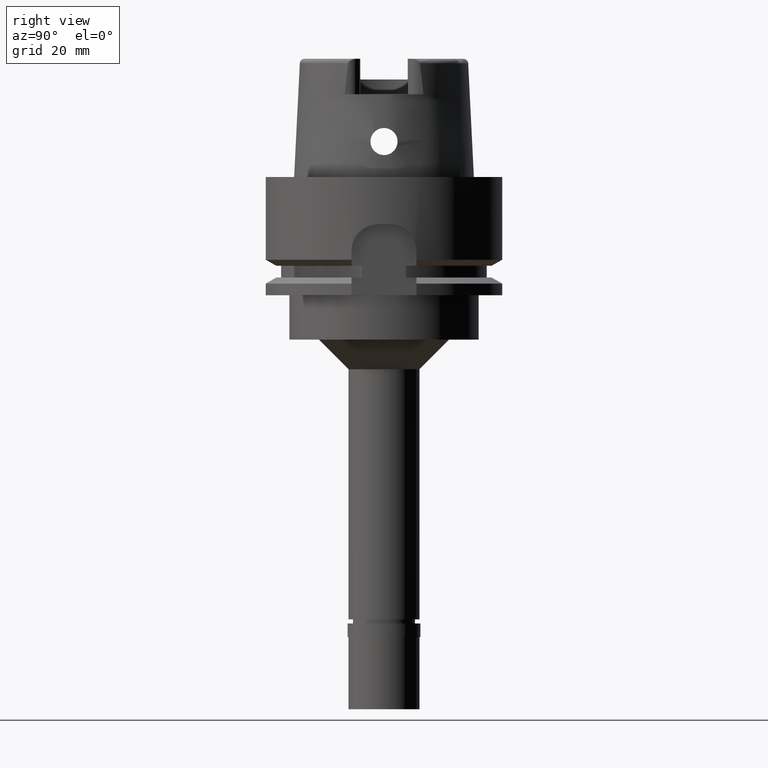
[diagram: clean part render]
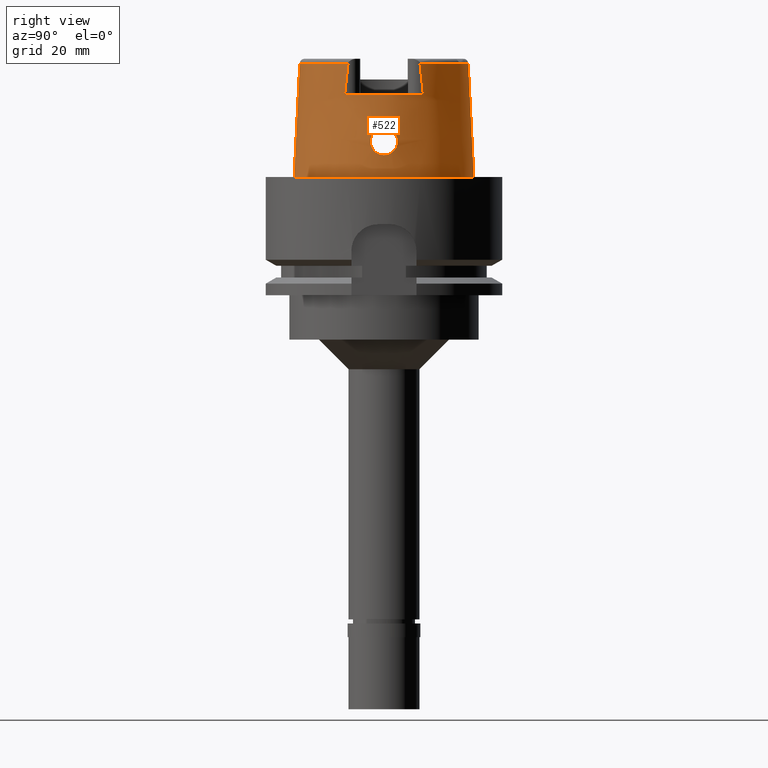
[diagram: same view with one face highlighted and labeled with its STEP entity id]
A machine part, right view. The second image highlights one B-rep face of the part: STEP entity #522.
In plain terms, the highlighted conical surface has half-angle 2.862 deg.
Its self-contained STEP definition (entity closure, byte-faithful):
#49 = EDGE_LOOP ( 'NONE', ( #3539, #1758, #2909, #3270, #3916, #82, #4448, #4754 ) ) ;
#67 = AXIS2_PLACEMENT_3D ( 'NONE', #4349, #1844, #2269 ) ;
#81 = CARTESIAN_POINT ( 'NONE',  ( 14.99031966774297331, 0.7459048849143846693, 3.823714677298882592 ) ) ;
#82 = ORIENTED_EDGE ( 'NONE', *, *, #427, .T. ) ;
#120 = CARTESIAN_POINT ( 'NONE',  ( 12.88000000001000167, 6.659963896840999986, 14.00000000000000000 ) ) ;
#131 = CARTESIAN_POINT ( 'NONE',  ( 14.90627182293922282, 1.538495934737809545, 4.290177245189100930 ) ) ;
#161 = CARTESIAN_POINT ( 'NONE',  ( 14.73194475933520309, -1.581393375610022467, 7.670274872890817441 ) ) ;
#162 = CARTESIAN_POINT ( 'NONE',  ( 14.75636128793671631, 1.136645188751945534, 8.000932732768214706 ) ) ;
#189 = CARTESIAN_POINT ( 'NONE',  ( 14.72153749465031147, -1.748226318510276656, 7.504129366570800208 ) ) ;
#190 = CARTESIAN_POINT ( 'NONE',  ( 14.79662730693979711, 2.107954445213601424, 5.079727333151640600 ) ) ;
#215 = CARTESIAN_POINT ( 'NONE',  ( 14.72949362766434689, -1.621123649780934262, 7.631585187204686704 ) ) ;
#216 = CARTESIAN_POINT ( 'NONE',  ( 14.82516123952829545, 1.987898055920620299, 4.840680728833150148 ) ) ;
#240 = B_SPLINE_CURVE_WITH_KNOTS ( 'NONE', 3,
 ( #3498, #4751, #2334, #5259 ),
 .UNSPECIFIED., .F., .F.,
 ( 4, 4 ),
 ( 0.0000000000000000000, 1.000000000000000000 ),
 .UNSPECIFIED. ) ;
#242 = CARTESIAN_POINT ( 'NONE',  ( 14.77220118755716882, -2.195301879304218051, 5.312847825857951456 ) ) ;
#243 = CARTESIAN_POINT ( 'NONE',  ( 14.72038873287895555, 1.773863286989557420, 7.464610640974472133 ) ) ;
#265 = CARTESIAN_POINT ( 'NONE',  ( 14.76763763204890445, -0.8773543148358186050, 8.126091386768194980 ) ) ;
#266 = CARTESIAN_POINT ( 'NONE',  ( 14.75286377042386654, 1.207578031709185318, 7.959491211283949319 ) ) ;
#308 = CONICAL_SURFACE ( 'NONE', #1331, 14.71899189528999941, 0.04996004983832824653 ) ;
#366 = EDGE_CURVE ( 'NONE', #1261, #3044, #1496, .T. ) ;
#393 = CARTESIAN_POINT ( 'NONE',  ( 14.85789831754006229, -1.827827946657746949, 4.601869308658078417 ) ) ;
#408 = VERTEX_POINT ( 'NONE', #4471 ) ;
#427 = EDGE_CURVE ( 'NONE', #5111, #1979, #904, .T. ) ;
#506 = CARTESIAN_POINT ( 'NONE',  ( 14.98243551379921357, 0.8543323515079437325, 3.864535165651797666 ) ) ;
#522 = ADVANCED_FACE ( 'NONE', ( #1097, #1555 ), #308, .T. ) ;
#558 = CARTESIAN_POINT ( 'NONE',  ( 14.76786071733875794, -0.8715808162125661118, 8.128467170309809475 ) ) ;
#571 = CARTESIAN_POINT ( 'NONE',  ( 15.01500049747999910, 0.0000000000000000000, 3.700000000000000178 ) ) ;
#584 = CARTESIAN_POINT ( 'NONE',  ( 14.74236918891833881, -1.402786313778670690, 7.824249885781482838 ) ) ;
#586 = CARTESIAN_POINT ( 'NONE',  ( 14.70696992323906649, 2.017200220830859703, 7.115079012711747808 ) ) ;
#617 = CARTESIAN_POINT ( 'NONE',  ( 14.75001149344660334, -1.261050655886654548, 7.923504428664499777 ) ) ;
#618 = CARTESIAN_POINT ( 'NONE',  ( 14.70427221823438657, 2.242703931572390008, 6.515680730310596580 ) ) ;
#640 = CARTESIAN_POINT ( 'NONE',  ( 14.73757174422895844, -2.287928503857380225, 5.720955193819562190 ) ) ;
#641 = CARTESIAN_POINT ( 'NONE',  ( 14.89899165425383920, 1.586726493423344486, 4.334940695888434448 ) ) ;
#657 = CIRCLE ( 'NONE', #1864, 15.20000663301000010 ) ;
#668 = CARTESIAN_POINT ( 'NONE',  ( 14.75798564006055003, -1.101463372341952240, 8.019455738740701278 ) ) ;
#669 = CARTESIAN_POINT ( 'NONE',  ( 14.87689953149387279, 1.723568334513447375, 4.475193210527258714 ) ) ;
#698 = CARTESIAN_POINT ( 'NONE',  ( 14.95830063219481154, -1.124479145752672160, 3.992383279016750386 ) ) ;
#775 = CARTESIAN_POINT ( 'NONE',  ( 15.01500049747999910, -0.2871325970946338457, 3.699999999999998401 ) ) ;
#798 = DIRECTION ( 'NONE',  ( 0.0000000000000000000, 1.000000000000000000, 0.0000000000000000000 ) ) ;
#904 = CIRCLE ( 'NONE', #1773, 14.23797715755999782 ) ;
#943 = CARTESIAN_POINT ( 'NONE',  ( 12.88000000001000167, -6.659963896840999986, 14.00000000000000000 ) ) ;
#966 = DIRECTION ( 'NONE',  ( 0.8882768779220027167, 0.4593083802296007434, 0.0000000000000000000 ) ) ;
#986 = CARTESIAN_POINT ( 'NONE',  ( 14.70919325498873853, -1.970696971314909618, 7.188285030719960389 ) ) ;
#987 = CARTESIAN_POINT ( 'NONE',  ( 14.77588791688129888, 2.186442120405778233, 5.267482020026404754 ) ) ;
#1006 = CARTESIAN_POINT ( 'NONE',  ( 0.0000000000000000000, 14.23797715755999782, 19.23995141520000018 ) ) ;
#1014 = CARTESIAN_POINT ( 'NONE',  ( 14.78499286951999991, -6.894269632583999541E-14, 8.300000000000000711 ) ) ;
#1016 = CARTESIAN_POINT ( 'NONE',  ( 14.76156421944066466, 2.230824447536166932, 5.420041795631996173 ) ) ;
#1043 = CARTESIAN_POINT ( 'NONE',  ( 14.71466549942258517, -2.295559139314290231, 6.147467041128566123 ) ) ;
#1044 = CARTESIAN_POINT ( 'NONE',  ( 14.72899572460062068, 1.629097317225929764, 7.623589217242969340 ) ) ;
#1069 = CARTESIAN_POINT ( 'NONE',  ( 14.71564338778878600, -1.847806870517102462, 7.377781273352688629 ) ) ;
#1070 = CARTESIAN_POINT ( 'NONE',  ( 14.72875568117244427, 1.633091607890501784, 7.619572078509174062 ) ) ;
#1097 = FACE_OUTER_BOUND ( 'NONE', #49, .T. ) ;
#1098 = CARTESIAN_POINT ( 'NONE',  ( 14.85071887117963740, 1.866340590171695846, 4.653803108942252464 ) ) ;
#1124 = CARTESIAN_POINT ( 'NONE',  ( 14.91234256874128228, -1.506179668287541240, 4.253282921714210296 ) ) ;
#1125 = CARTESIAN_POINT ( 'NONE',  ( 14.76724013281583048, 0.8875292537788221914, 8.121866557286843147 ) ) ;
#1146 = CARTESIAN_POINT ( 'NONE',  ( 14.97993120625483066, -0.8860914320854921256, 3.877516195770338570 ) ) ;
#1171 = CARTESIAN_POINT ( 'NONE',  ( 14.79810643752574784, -2.102675460223371484, 5.065757656975159229 ) ) ;
#1198 = CARTESIAN_POINT ( 'NONE',  ( 14.81768529006569501, -2.021422245102785009, 4.902150308444729987 ) ) ;
#1261 = VERTEX_POINT ( 'NONE', #5035 ) ;
#1288 = CARTESIAN_POINT ( 'NONE',  ( 0.0000000000000000000, 0.0000000000000000000, 14.00000000000000000 ) ) ;
#1297 = CARTESIAN_POINT ( 'NONE',  ( 12.87997705758999878, 6.068458167862999630, 19.23995141520000018 ) ) ;
#1309 = CARTESIAN_POINT ( 'NONE',  ( 14.98583023365998557, 0.8092568642836694970, 3.846919111858743801 ) ) ;
#1331 = AXIS2_PLACEMENT_3D ( 'NONE', #2013, #3662, #5285 ) ;
#1335 = CARTESIAN_POINT ( 'NONE',  ( 14.93085779972519944, 1.360633155515191151, 4.143801152077521088 ) ) ;
#1371 = CARTESIAN_POINT ( 'NONE',  ( 14.73069371207435374, -1.601746922599884604, 7.650604681000335638 ) ) ;
#1401 = CARTESIAN_POINT ( 'NONE',  ( 14.76441077863198181, 0.9572565202499995207, 8.091400617971791220 ) ) ;
#1424 = ORIENTED_EDGE ( 'NONE', *, *, #1572, .F. ) ;
#1428 = CARTESIAN_POINT ( 'NONE',  ( 14.70353423477952504, -2.113390049053946118, 6.907552478473814261 ) ) ;
#1429 = CARTESIAN_POINT ( 'NONE',  ( 14.89505763544525685, 1.611988072085211110, 4.359395268229523168 ) ) ;
#1444 = DIRECTION ( 'NONE',  ( 0.0000000000000000000, 0.04993926899656212642, -0.9987522562738413434 ) ) ;
#1454 = CARTESIAN_POINT ( 'NONE',  ( 14.74945666596643257, -1.271567424653163192, 7.916560800381597041 ) ) ;
#1455 = CARTESIAN_POINT ( 'NONE',  ( 14.70295564197937566, 2.139721751908810088, 6.843613750114655225 ) ) ;
#1476 = CARTESIAN_POINT ( 'NONE',  ( 14.78455329603679402, -2.153012719558052179, 5.190526148136822115 ) ) ;
#1477 = CARTESIAN_POINT ( 'NONE',  ( 14.71340611712510871, 1.895769364155533321, 7.304485723113478990 ) ) ;
#1496 = B_SPLINE_CURVE_WITH_KNOTS ( 'NONE', 3,
 ( #1014, #2629, #2603, #5142, #4707, #3880, #4367, #2703, #4317, #4261, #558, #265, #1909, #3559, #668, #2260, #1808, #3904, #3532, #617, #1454, #3481, #584, #3851, #5170, #161, #1371, #2235, #215, #189, #1069, #986, #4289, #1836, #3454, #5112, #1428, #3098, #3068, #1858, #2311, #3009, #3507, #5088, #1043, #2677, #3037, #4656, #640, #2286, #3931, #242, #1885, #1476, #3122, #4755, #3224, #1171, #2732, #1198, #4833, #2836, #1499, #4445, #2440, #5219, #4089, #393, #1931, #4887, #1527, #2391, #3201, #2037, #1124, #2759, #3253, #698, #4419, #5264, #3986, #2364, #3177, #1146, #4397, #775, #2779 ),
 .UNSPECIFIED., .F., .F.,
 ( 4, 2, 2, 1, 1, 1, 2, 2, 2, 2, 1, 2, 2, 2, 1, 1, 2, 2, 2, 2, 1, 1, 2, 2, 2, 2, 2, 2, 2, 2, 1, 1, 2, 2, 2, 2, 1, 2, 2, 2, 1, 1, 2, 2, 2, 2, 1, 1, 2, 2, 4 ),
 ( 0.0000000000000000000, 0.06250000000000610623, 0.09375000000000907607, 0.1093750000000104500, 0.1171875000000111439, 0.1210937500000115741, 0.1230468750000117961, 0.1250000000000120182, 0.1562500000000134337, 0.1718750000000139611, 0.1796875000000140998, 0.1835937500000141831, 0.1875000000000142664, 0.2187500000000154876, 0.2343750000000162370, 0.2421875000000166256, 0.2460937500000169587, 0.2500000000000172640, 0.3125000000000223155, 0.3437500000000249800, 0.3593750000000263123, 0.3671875000000269784, 0.3710937500000271450, 0.3750000000000273115, 0.4375000000000305866, 0.4687500000000322520, 0.4843750000000330846, 0.5000000000000339728, 0.5625000000000376366, 0.5937500000000394129, 0.6093750000000405231, 0.6171875000000409672, 0.6210937500000410783, 0.6250000000000410783, 0.6562500000000394129, 0.6718750000000386358, 0.6796875000000381917, 0.6835937500000380806, 0.6875000000000378586, 0.7187500000000355271, 0.7343750000000344169, 0.7421875000000338618, 0.7460937500000335287, 0.7500000000000330846, 0.8125000000000247580, 0.8437500000000205391, 0.8593750000000185407, 0.8671875000000175415, 0.8710937500000170974, 0.8750000000000165423, 1.000000000000000000 ),
 .UNSPECIFIED. ) ;
#1499 = CARTESIAN_POINT ( 'NONE',  ( 14.83223030098851858, -1.955433158244768377, 4.788777112413261428 ) ) ;
#1500 = CARTESIAN_POINT ( 'NONE',  ( 14.70278272850940304, 2.150285951056535083, 6.816652711922995600 ) ) ;
#1527 = CARTESIAN_POINT ( 'NONE',  ( 14.88495109027888041, -1.673917303365443976, 4.422461724030449126 ) ) ;
#1528 = CARTESIAN_POINT ( 'NONE',  ( 14.76714119523315993, 0.8900458611329298275, 8.120809736010480506 ) ) ;
#1555 = FACE_BOUND ( 'NONE', #4835, .T. ) ;
#1557 = CARTESIAN_POINT ( 'NONE',  ( 14.76685433761362276, 0.8973178279265808799, 8.117743206095068942 ) ) ;
#1572 = EDGE_CURVE ( 'NONE', #3044, #1261, #2649, .T. ) ;
#1632 = AXIS2_PLACEMENT_3D ( 'NONE', #1288, #3046, #966 ) ;
#1672 = VERTEX_POINT ( 'NONE', #3715 ) ;
#1721 = CARTESIAN_POINT ( 'NONE',  ( 15.00367739279779045, 0.5085428966952850738, 3.755686476448892197 ) ) ;
#1745 = CARTESIAN_POINT ( 'NONE',  ( 14.98158092310262646, 0.8653351177384595028, 3.868978640033970517 ) ) ;
#1758 = ORIENTED_EDGE ( 'NONE', *, *, #3176, .T. ) ;
#1773 = AXIS2_PLACEMENT_3D ( 'NONE', #4037, #4011, #798 ) ;
#1808 = CARTESIAN_POINT ( 'NONE',  ( 14.75372188613951430, -1.188826335539440615, 7.969038397971702103 ) ) ;
#1809 = CARTESIAN_POINT ( 'NONE',  ( 14.76098009121996135, 1.036446930946429257, 8.053582547860150598 ) ) ;
#1836 = CARTESIAN_POINT ( 'NONE',  ( 14.70541216265018569, -2.056176607278471735, 7.031204617240676136 ) ) ;
#1837 = CARTESIAN_POINT ( 'NONE',  ( 14.80062957414195601, 2.092187569533761948, 5.044424310516228971 ) ) ;
#1844 = DIRECTION ( 'NONE',  ( 0.0000000000000000000, 0.0000000000000000000, -1.000000000000000000 ) ) ;
#1858 = CARTESIAN_POINT ( 'NONE',  ( 14.70192353252406292, -2.185013873810221607, 6.734496342493828003 ) ) ;
#1859 = CARTESIAN_POINT ( 'NONE',  ( 14.70330530486530662, 2.224536832738603032, 6.589284392127430223 ) ) ;
#1864 = AXIS2_PLACEMENT_3D ( 'NONE', #1930, #3582, #2389 ) ;
#1885 = CARTESIAN_POINT ( 'NONE',  ( 14.77772055641925242, -2.177132526980690486, 5.256435195125702897 ) ) ;
#1886 = CARTESIAN_POINT ( 'NONE',  ( 14.74146914216645676, 1.418215624199719249, 7.810927990181367520 ) ) ;
#1890 = EDGE_CURVE ( 'NONE', #5277, #3396, #657, .T. ) ;
#1909 = CARTESIAN_POINT ( 'NONE',  ( 14.76525806504742100, -0.9385350473888353084, 8.100723137269767449 ) ) ;
#1911 = CARTESIAN_POINT ( 'NONE',  ( 14.80666344919068145, 2.067942716196244035, 4.991931575862035508 ) ) ;
#1930 = CARTESIAN_POINT ( 'NONE',  ( 0.0000000000000000000, 0.0000000000000000000, 7.958078640512999903E-13 ) ) ;
#1931 = CARTESIAN_POINT ( 'NONE',  ( 14.87086338583825373, -1.755950210585481397, 4.514042407701809978 ) ) ;
#1966 = CIRCLE ( 'NONE', #67, 14.23797715756000315 ) ;
#1979 = VERTEX_POINT ( 'NONE', #1297 ) ;
#2013 = CARTESIAN_POINT ( 'NONE',  ( 0.0000000000000000000, 0.0000000000000000000, 9.619975707601000181 ) ) ;
#2037 = CARTESIAN_POINT ( 'NONE',  ( 14.89132152491166927, -1.635323577257784544, 4.382646478392808298 ) ) ;
#2093 = CARTESIAN_POINT ( 'NONE',  ( 15.01500049748000798, 0.1428640230031846814, 3.700000000000000178 ) ) ;
#2098 = B_SPLINE_CURVE_WITH_KNOTS ( 'NONE', 3,
 ( #2129, #3758, #5008, #943 ),
 .UNSPECIFIED., .F., .F.,
 ( 4, 4 ),
 ( 0.0000000000000000000, 1.000000000000000000 ),
 .UNSPECIFIED. ) ;
#2129 = CARTESIAN_POINT ( 'NONE',  ( 12.88000213910999925, -6.068393260412999979, 19.24000420731999839 ) ) ;
#2136 = VERTEX_POINT ( 'NONE', #120 ) ;
#2181 = EDGE_CURVE ( 'NONE', #5111, #3396, #3495, .T. ) ;
#2207 = CARTESIAN_POINT ( 'NONE',  ( 14.70255776574056661, 2.173679922700427536, 6.753461038013438333 ) ) ;
#2235 = CARTESIAN_POINT ( 'NONE',  ( 14.72985967221857884, -1.615234754695002772, 7.637408227725688725 ) ) ;
#2236 = CARTESIAN_POINT ( 'NONE',  ( 14.89650916482271903, 1.602739223195738916, 4.350348390244184849 ) ) ;
#2260 = CARTESIAN_POINT ( 'NONE',  ( 14.75634289263489229, -1.135895648922786716, 8.000355505852548177 ) ) ;
#2261 = CARTESIAN_POINT ( 'NONE',  ( 14.70308791781597435, 2.132559282125863653, 6.861559193087184205 ) ) ;
#2269 = DIRECTION ( 'NONE',  ( 0.9046233376276806570, -0.4262119390858908896, 0.0000000000000000000 ) ) ;
#2286 = CARTESIAN_POINT ( 'NONE',  ( 14.75515235173337736, -2.246232496608297158, 5.499939721797770353 ) ) ;
#2287 = CARTESIAN_POINT ( 'NONE',  ( 14.73841559879714502, 2.283619942142415482, 5.716588133167483043 ) ) ;
#2311 = CARTESIAN_POINT ( 'NONE',  ( 14.70278115732399371, -2.228559900266604110, 6.588157165075712030 ) ) ;
#2313 = CARTESIAN_POINT ( 'NONE',  ( 14.74853410702334777, 1.288930875136958365, 7.904909080908227637 ) ) ;
#2325 = CARTESIAN_POINT ( 'NONE',  ( 0.0000000000000000000, -14.23797715755999782, 19.23995141520000018 ) ) ;
#2334 = CARTESIAN_POINT ( 'NONE',  ( 12.88000000000000078, 6.263607466965889436, 17.57638042516923349 ) ) ;
#2364 = CARTESIAN_POINT ( 'NONE',  ( 14.97820246225900220, -0.9073876234263037466, 3.886539364112054251 ) ) ;
#2389 = DIRECTION ( 'NONE',  ( 0.0000000000000000000, -1.000000000000000000, 0.0000000000000000000 ) ) ;
#2391 = CARTESIAN_POINT ( 'NONE',  ( 14.88820987158306508, -1.654246553681594456, 4.402014460674711138 ) ) ;
#2440 = CARTESIAN_POINT ( 'NONE',  ( 14.83823826494993980, -1.926728923950500993, 4.743882805619249687 ) ) ;
#2519 = CARTESIAN_POINT ( 'NONE',  ( 15.01500049747999910, 0.0000000000000000000, 3.700000000000000178 ) ) ;
#2578 = CARTESIAN_POINT ( 'NONE',  ( 14.99376967620084500, 0.6912976572167338629, 3.806018182084690782 ) ) ;
#2603 = CARTESIAN_POINT ( 'NONE',  ( 14.78353493518661743, -0.2839887760551652041, 8.287368250211986975 ) ) ;
#2625 = CARTESIAN_POINT ( 'NONE',  ( 0.0000000000000000000, -15.20000663301000010, 4.547473508865000658E-13 ) ) ;
#2629 = CARTESIAN_POINT ( 'NONE',  ( 14.78499286952000169, -0.1390336365029230803, 8.300000000000002487 ) ) ;
#2630 = CARTESIAN_POINT ( 'NONE',  ( 14.70880497657666552, 2.286022835390083774, 6.294431243740851833 ) ) ;
#2649 = B_SPLINE_CURVE_WITH_KNOTS ( 'NONE', 3,
 ( #2519, #2093, #3805, #1721, #4177, #2578, #81, #1309, #4206, #506, #1745, #3399, #5027, #4657, #1335, #2977, #4628, #131, #3508, #641, #2236, #1429, #3038, #669, #4683, #1098, #3069, #216, #4708, #1911, #1837, #190, #3482, #987, #1016, #2656, #2287, #5113, #4318, #3560, #2735, #2678, #2630, #618, #1859, #4292, #2207, #1500, #1455, #2261, #4783, #3932, #586, #1477, #3905, #243, #3533, #5089, #5196, #5143, #3881, #1070, #3100, #4341, #4735, #1044, #5172, #3150, #4398, #1886, #3123, #4756, #2704, #4368, #3852, #2313, #3963, #266, #162, #1809, #3455, #1401, #4091, #2810, #1557, #1528, #1125, #4012, #2760, #3587 ),
 .UNSPECIFIED., .F., .F.,
 ( 4, 2, 2, 1, 1, 2, 2, 2, 2, 2, 1, 2, 2, 2, 2, 2, 1, 2, 2, 2, 2, 2, 2, 2, 2, 1, 1, 2, 2, 2, 2, 1, 1, 1, 1, 1, 2, 3, 2, 2, 2, 1, 1, 2, 2, 2, 2, 1, 1, 2, 2, 4 ),
 ( 0.0000000000000000000, 0.04999999999999182182, 0.07499999999998771538, 0.08749999999998565869, 0.09374999999998466504, 0.09687499999998416822, 0.09999999999998367139, 0.1499999999999748201, 0.1749999999999703737, 0.1874999999999681644, 0.1937499999999671429, 0.1968749999999667433, 0.1999999999999663436, 0.2249999999999633404, 0.2499999999999603095, 0.2749999999999572231, 0.2874999999999557354, 0.2937499999999549916, 0.2999999999999541922, 0.3499999999999492406, 0.3749999999999467648, 0.3874999999999457212, 0.3999999999999446221, 0.4499999999999400035, 0.4749999999999376943, 0.4874999999999365397, 0.4937499999999359623, 0.4968749999999355071, 0.4999999999999351075, 0.5499999999999299893, 0.5749999999999272360, 0.5874999999999259703, 0.5937499999999253930, 0.5968749999999249933, 0.5984374999999249045, 0.5992187499999247491, 0.5996093749999246159, 0.5999999999999243716, 0.6499999999999162004, 0.6749999999999121147, 0.6874999999999100719, 0.6937499999999087175, 0.6968749999999080957, 0.6984374999999080069, 0.6999999999999078071, 0.7499999999999205080, 0.7749999999999267475, 0.7874999999999297007, 0.7937499999999314548, 0.7968749999999323874, 0.7999999999999333200, 1.000000000000000000 ),
 .UNSPECIFIED. ) ;
#2656 = CARTESIAN_POINT ( 'NONE',  ( 14.74374452277153935, 2.273409428186356163, 5.643150058892978826 ) ) ;
#2677 = CARTESIAN_POINT ( 'NONE',  ( 14.71779328796712605, -2.299087836939182505, 6.074386882895384865 ) ) ;
#2678 = CARTESIAN_POINT ( 'NONE',  ( 14.71400283978494627, 2.299959550086929649, 6.146376342571642226 ) ) ;
#2703 = CARTESIAN_POINT ( 'NONE',  ( 14.76996931181895079, -0.8152982594222513146, 8.150813164627940921 ) ) ;
#2704 = CARTESIAN_POINT ( 'NONE',  ( 14.74613058091127904, 1.333674799711856762, 7.873995737545543605 ) ) ;
#2732 = CARTESIAN_POINT ( 'NONE',  ( 14.80542293237624918, -2.073774205911512514, 5.002429002088763177 ) ) ;
#2735 = CARTESIAN_POINT ( 'NONE',  ( 14.72322019918707525, 2.300010002224568417, 5.964202129627091509 ) ) ;
#2759 = CARTESIAN_POINT ( 'NONE',  ( 14.92957556209227477, -1.378436023374076447, 4.152611890676190853 ) ) ;
#2760 = CARTESIAN_POINT ( 'NONE',  ( 14.78499286951999814, 0.2785816054124103935, 8.300000000000004263 ) ) ;
#2779 = CARTESIAN_POINT ( 'NONE',  ( 15.01500049747999910, 0.0000000000000000000, 3.700000000000000178 ) ) ;
#2810 = CARTESIAN_POINT ( 'NONE',  ( 14.76641914905161279, 0.9082849027139208165, 8.113085414046551591 ) ) ;
#2836 = CARTESIAN_POINT ( 'NONE',  ( 14.82876233174937575, -1.971530535125014527, 4.815314235137228671 ) ) ;
#2909 = ORIENTED_EDGE ( 'NONE', *, *, #3296, .T. ) ;
#2977 = CARTESIAN_POINT ( 'NONE',  ( 14.91783661874776357, 1.457688006915064838, 4.220436890350618420 ) ) ;
#3009 = CARTESIAN_POINT ( 'NONE',  ( 14.70730636589738616, -2.271636851603591634, 6.367788029186749910 ) ) ;
#3037 = CARTESIAN_POINT ( 'NONE',  ( 14.71959498646766207, -2.299974944579397551, 6.035908648684809918 ) ) ;
#3038 = CARTESIAN_POINT ( 'NONE',  ( 14.88547785566798609, 1.672451941596075020, 4.419295077497807256 ) ) ;
#3044 = VERTEX_POINT ( 'NONE', #571 ) ;
#3046 = DIRECTION ( 'NONE',  ( 0.0000000000000000000, 0.0000000000000000000, -1.000000000000000000 ) ) ;
#3068 = CARTESIAN_POINT ( 'NONE',  ( 14.70330643589702824, -2.122549557199268744, 6.885932407563797319 ) ) ;
#3069 = CARTESIAN_POINT ( 'NONE',  ( 14.83357209720586489, 1.948996305939609819, 4.776526801499217711 ) ) ;
#3098 = CARTESIAN_POINT ( 'NONE',  ( 14.70337032175851633, -2.119890250266530884, 6.892263597514265427 ) ) ;
#3100 = CARTESIAN_POINT ( 'NONE',  ( 14.72887292709211238, 1.631140393052893378, 7.621537213695744661 ) ) ;
#3117 = CARTESIAN_POINT ( 'NONE',  ( 12.88000000001000167, -6.659963896840999986, 14.00000000000000000 ) ) ;
#3122 = CARTESIAN_POINT ( 'NONE',  ( 14.78756592928968061, -2.142038239788523146, 5.162280049919470315 ) ) ;
#3123 = CARTESIAN_POINT ( 'NONE',  ( 14.74281960795708635, 1.394066657335881532, 7.829661419225123709 ) ) ;
#3133 = DIRECTION ( 'NONE',  ( 0.0000000000000000000, -0.04993926899656212642, -0.9987522562738413434 ) ) ;
#3143 = EDGE_CURVE ( 'NONE', #1672, #4211, #2098, .T. ) ;
#3150 = CARTESIAN_POINT ( 'NONE',  ( 14.73565084152854610, 1.519584312216276434, 7.726927828362693873 ) ) ;
#3156 = VECTOR ( 'NONE', #1444, 1000.000000000000227 ) ;
#3176 = EDGE_CURVE ( 'NONE', #1672, #408, #1966, .T. ) ;
#3177 = CARTESIAN_POINT ( 'NONE',  ( 14.97943963447102611, -0.8921919546342653717, 3.880079795209027349 ) ) ;
#3201 = CARTESIAN_POINT ( 'NONE',  ( 14.89038329061813393, -1.641049145501474182, 4.388464351523973406 ) ) ;
#3224 = CARTESIAN_POINT ( 'NONE',  ( 14.79084109237921574, -2.129933659575097948, 5.131987366718661292 ) ) ;
#3253 = CARTESIAN_POINT ( 'NONE',  ( 14.95159777438580306, -1.187863799408747534, 4.029032783553769370 ) ) ;
#3270 = ORIENTED_EDGE ( 'NONE', *, *, #1890, .T. ) ;
#3296 = EDGE_CURVE ( 'NONE', #408, #5277, #3544, .T. ) ;
#3396 = VERTEX_POINT ( 'NONE', #4023 ) ;
#3399 = CARTESIAN_POINT ( 'NONE',  ( 14.97223534872484940, 0.9839916320062273014, 3.917614939641622218 ) ) ;
#3454 = CARTESIAN_POINT ( 'NONE',  ( 14.70454682554150061, -2.079139874888851214, 6.984481315475081331 ) ) ;
#3455 = CARTESIAN_POINT ( 'NONE',  ( 14.76241511348337632, 1.004072474345841348, 8.069547010318139257 ) ) ;
#3481 = CARTESIAN_POINT ( 'NONE',  ( 14.74570461366930019, -1.342131369103907401, 7.869326209083312484 ) ) ;
#3482 = CARTESIAN_POINT ( 'NONE',  ( 14.79475146362087479, 2.115204911036151714, 5.096489178140558352 ) ) ;
#3495 = LINE ( 'NONE', #1006, #3156 ) ;
#3498 = CARTESIAN_POINT ( 'NONE',  ( 12.88000000001000167, 6.659963896840999986, 14.00000000000000000 ) ) ;
#3507 = CARTESIAN_POINT ( 'NONE',  ( 14.70935456398409613, -2.282299686087128521, 6.294182985286940202 ) ) ;
#3508 = CARTESIAN_POINT ( 'NONE',  ( 14.90268192847891626, 1.562664300993545474, 4.312122881152612663 ) ) ;
#3532 = CARTESIAN_POINT ( 'NONE',  ( 14.75096360495684600, -1.242822188141326389, 7.935332284768612965 ) ) ;
#3533 = CARTESIAN_POINT ( 'NONE',  ( 14.72275674424836467, 1.733537441348481645, 7.512629839342336524 ) ) ;
#3539 = ORIENTED_EDGE ( 'NONE', *, *, #3143, .F. ) ;
#3544 = LINE ( 'NONE', #2325, #5235 ) ;
#3559 = CARTESIAN_POINT ( 'NONE',  ( 14.76260011162371022, -1.001235729015962361, 8.072008489441223844 ) ) ;
#3560 = CARTESIAN_POINT ( 'NONE',  ( 14.72502547026397046, 2.299240721768580187, 5.931127007493452119 ) ) ;
#3582 = DIRECTION ( 'NONE',  ( 0.0000000000000000000, 0.0000000000000000000, 1.000000000000000000 ) ) ;
#3587 = CARTESIAN_POINT ( 'NONE',  ( 14.78499286951999991, -6.894269632583999541E-14, 8.300000000000000711 ) ) ;
#3649 = CARTESIAN_POINT ( 'NONE',  ( 0.0000000000000000000, 14.23797715755999782, 19.23995141520000018 ) ) ;
#3662 = DIRECTION ( 'NONE',  ( 0.0000000000000000000, 0.0000000000000000000, -1.000000000000000000 ) ) ;
#3715 = CARTESIAN_POINT ( 'NONE',  ( 12.88000213910999925, -6.068393260412999979, 19.24000420731999839 ) ) ;
#3758 = CARTESIAN_POINT ( 'NONE',  ( 12.88000000000000078, -6.263516055675400374, 17.57678606943408184 ) ) ;
#3805 = CARTESIAN_POINT ( 'NONE',  ( 15.01216972130945138, 0.2889085361980017752, 3.713350018737802571 ) ) ;
#3851 = CARTESIAN_POINT ( 'NONE',  ( 14.73736565106165486, -1.490225601112538323, 7.752327574902421858 ) ) ;
#3852 = CARTESIAN_POINT ( 'NONE',  ( 14.74812514119049567, 1.296584464359652467, 7.899707907597676382 ) ) ;
#3868 = CIRCLE ( 'NONE', #1632, 14.49998341749000730 ) ;
#3880 = CARTESIAN_POINT ( 'NONE',  ( 14.77405836201962508, -0.6932192089372865018, 8.193394134024213571 ) ) ;
#3881 = CARTESIAN_POINT ( 'NONE',  ( 14.72858010876283430, 1.636013997159265543, 7.616623516473531197 ) ) ;
#3904 = CARTESIAN_POINT ( 'NONE',  ( 14.75237216155259468, -1.215611514713878627, 7.952713062481888251 ) ) ;
#3905 = CARTESIAN_POINT ( 'NONE',  ( 14.71595629529932303, 1.850345475076630164, 7.368547691972652025 ) ) ;
#3916 = ORIENTED_EDGE ( 'NONE', *, *, #2181, .F. ) ;
#3931 = CARTESIAN_POINT ( 'NONE',  ( 14.76161213662737737, -2.228430080893749832, 5.425358214722435513 ) ) ;
#3932 = CARTESIAN_POINT ( 'NONE',  ( 14.70429824816387487, 2.078362336518352116, 6.992685890098427670 ) ) ;
#3963 = CARTESIAN_POINT ( 'NONE',  ( 14.74882556781084730, 1.283461914449651076, 7.908594556387154917 ) ) ;
#3986 = CARTESIAN_POINT ( 'NONE',  ( 14.97631680333368820, -0.9302401279105165788, 3.896398702440013295 ) ) ;
#4011 = DIRECTION ( 'NONE',  ( 0.0000000000000000000, 0.0000000000000000000, -1.000000000000000000 ) ) ;
#4012 = CARTESIAN_POINT ( 'NONE',  ( 14.77913629658665862, 0.5822871384254768579, 8.248750217797224948 ) ) ;
#4023 = CARTESIAN_POINT ( 'NONE',  ( 0.0000000000000000000, 15.20000663301000010, 7.958078640512999903E-13 ) ) ;
#4037 = CARTESIAN_POINT ( 'NONE',  ( 0.0000000000000000000, 0.0000000000000000000, 19.23995141520000018 ) ) ;
#4089 = CARTESIAN_POINT ( 'NONE',  ( 14.84928367997450671, -1.872854896717882633, 4.662786864968633260 ) ) ;
#4091 = CARTESIAN_POINT ( 'NONE',  ( 14.76536939414467398, 0.9342843085960429450, 8.101803981024998436 ) ) ;
#4127 = ORIENTED_EDGE ( 'NONE', *, *, #366, .F. ) ;
#4134 = EDGE_CURVE ( 'NONE', #2136, #1979, #240, .T. ) ;
#4177 = CARTESIAN_POINT ( 'NONE',  ( 15.00013892258458803, 0.5818388746370409814, 3.773509892942178201 ) ) ;
#4206 = CARTESIAN_POINT ( 'NONE',  ( 14.98380667100682828, 0.8363155122398264751, 3.857415068297660454 ) ) ;
#4211 = VERTEX_POINT ( 'NONE', #3117 ) ;
#4261 = CARTESIAN_POINT ( 'NONE',  ( 14.76821950586611543, -0.8622052132425718218, 8.132282294756898011 ) ) ;
#4289 = CARTESIAN_POINT ( 'NONE',  ( 14.70744171530409616, -2.007272775943266474, 7.125094135931661299 ) ) ;
#4292 = CARTESIAN_POINT ( 'NONE',  ( 14.70267094392922935, 2.191582249312938213, 6.698872161593498298 ) ) ;
#4317 = CARTESIAN_POINT ( 'NONE',  ( 14.76875341736515601, -0.8481387156332940158, 8.137952135056256253 ) ) ;
#4318 = CARTESIAN_POINT ( 'NONE',  ( 14.72913244440776559, 2.296035088798347168, 5.860449805652318211 ) ) ;
#4341 = CARTESIAN_POINT ( 'NONE',  ( 14.72899038737041444, 1.629186109634322976, 7.623500114006255046 ) ) ;
#4349 = CARTESIAN_POINT ( 'NONE',  ( 0.0000000000000000000, 0.0000000000000000000, 19.23995141520000018 ) ) ;
#4367 = CARTESIAN_POINT ( 'NONE',  ( 14.77228150455082556, -0.7495666908739454515, 8.175071704980094722 ) ) ;
#4368 = CARTESIAN_POINT ( 'NONE',  ( 14.74751655717203747, 1.307950268494772805, 7.891933369563515654 ) ) ;
#4397 = CARTESIAN_POINT ( 'NONE',  ( 15.00354930034525403, -0.5879299935995344617, 3.754525404120090837 ) ) ;
#4398 = CARTESIAN_POINT ( 'NONE',  ( 14.73772908756632916, 1.484197389475561124, 7.757936596825953046 ) ) ;
#4419 = CARTESIAN_POINT ( 'NONE',  ( 14.96739809947509947, -1.030599216160754228, 3.943520042025722816 ) ) ;
#4445 = CARTESIAN_POINT ( 'NONE',  ( 14.83581898417269507, -1.938345818576275637, 4.761884399575589732 ) ) ;
#4448 = ORIENTED_EDGE ( 'NONE', *, *, #4134, .F. ) ;
#4471 = CARTESIAN_POINT ( 'NONE',  ( 0.0000000000000000000, -14.23797715755999782, 19.23995141520000018 ) ) ;
#4628 = CARTESIAN_POINT ( 'NONE',  ( 14.91331777217344623, 1.490076658120768283, 4.247423060399555084 ) ) ;
#4656 = CARTESIAN_POINT ( 'NONE',  ( 14.72824966879609931, -2.300097289659000843, 5.864577380038237919 ) ) ;
#4657 = CARTESIAN_POINT ( 'NONE',  ( 14.93882477538281250, 1.296092170666427679, 4.098479113251352501 ) ) ;
#4683 = CARTESIAN_POINT ( 'NONE',  ( 14.85961695440144759, 1.820045557252519153, 4.591753672653467788 ) ) ;
#4707 = CARTESIAN_POINT ( 'NONE',  ( 14.77733871426973700, -0.5807178166882970283, 8.226856441854002000 ) ) ;
#4708 = CARTESIAN_POINT ( 'NONE',  ( 14.81278874697589565, 2.041974023107988589, 4.940857869660481683 ) ) ;
#4735 = CARTESIAN_POINT ( 'NONE',  ( 14.72899046948164958, 1.629184743597270613, 7.623501484825282226 ) ) ;
#4751 = CARTESIAN_POINT ( 'NONE',  ( 12.88000000000000078, 6.460775646290223051, 15.82979282284590106 ) ) ;
#4754 = ORIENTED_EDGE ( 'NONE', *, *, #4910, .T. ) ;
#4755 = CARTESIAN_POINT ( 'NONE',  ( 14.78959308840803999, -2.134579054591001945, 5.143451813859476474 ) ) ;
#4756 = CARTESIAN_POINT ( 'NONE',  ( 14.74500097802890508, 1.354382365197232430, 7.859010246708415082 ) ) ;
#4783 = CARTESIAN_POINT ( 'NONE',  ( 14.70317990929835084, 2.128145712409309720, 6.872384364935875567 ) ) ;
#4833 = CARTESIAN_POINT ( 'NONE',  ( 14.82198734519779570, -2.002469848438272138, 4.867848704593392029 ) ) ;
#4835 = EDGE_LOOP ( 'NONE', ( #1424, #4127 ) ) ;
#4887 = CARTESIAN_POINT ( 'NONE',  ( 14.87735669797482352, -1.718927705417496066, 4.471015815576477870 ) ) ;
#4910 = EDGE_CURVE ( 'NONE', #2136, #4211, #3868, .T. ) ;
#5008 = CARTESIAN_POINT ( 'NONE',  ( 12.88000000000000078, -6.460694178367399232, 15.83011800032741156 ) ) ;
#5027 = CARTESIAN_POINT ( 'NONE',  ( 14.96058426737365288, 1.105941730765010567, 3.977763792587717173 ) ) ;
#5035 = CARTESIAN_POINT ( 'NONE',  ( 14.78499286951999991, -6.894269632583999541E-14, 8.300000000000000711 ) ) ;
#5088 = CARTESIAN_POINT ( 'NONE',  ( 14.71323655395753605, -2.292916085388486458, 6.184105124462021763 ) ) ;
#5089 = CARTESIAN_POINT ( 'NONE',  ( 14.72578506119357478, 1.682665681285170134, 7.568268654815632601 ) ) ;
#5111 = VERTEX_POINT ( 'NONE', #3649 ) ;
#5112 = CARTESIAN_POINT ( 'NONE',  ( 14.70379878421332975, -2.103472315177723928, 6.930534570086654966 ) ) ;
#5113 = CARTESIAN_POINT ( 'NONE',  ( 14.73133867520849272, 2.293598185962558489, 5.824734649881208703 ) ) ;
#5142 = CARTESIAN_POINT ( 'NONE',  ( 14.77916113218646821, -0.5059799815619659968, 8.244918716236590228 ) ) ;
#5143 = CARTESIAN_POINT ( 'NONE',  ( 14.72817251509623659, 1.642801908885740625, 7.609737624295608960 ) ) ;
#5170 = CARTESIAN_POINT ( 'NONE',  ( 14.73486378195074842, -1.533059959404171169, 7.715290145713938230 ) ) ;
#5172 = CARTESIAN_POINT ( 'NONE',  ( 14.73066147450221841, 1.603109301657189123, 7.650971045224434164 ) ) ;
#5196 = CARTESIAN_POINT ( 'NONE',  ( 14.72736562891977208, 1.656254023672126596, 7.595942985648517443 ) ) ;
#5219 = CARTESIAN_POINT ( 'NONE',  ( 14.83962454667565112, -1.920010923245510037, 4.733647956183492767 ) ) ;
#5235 = VECTOR ( 'NONE', #3133, 1000.000000000000227 ) ;
#5259 = CARTESIAN_POINT ( 'NONE',  ( 12.87997705758999878, 6.068458167862999630, 19.23995141520000018 ) ) ;
#5264 = CARTESIAN_POINT ( 'NONE',  ( 14.97170762825692059, -0.9839554022446339587, 3.920614865682287231 ) ) ;
#5277 = VERTEX_POINT ( 'NONE', #2625 ) ;
#5285 = DIRECTION ( 'NONE',  ( 0.0000000000000000000, -1.000000000000000000, 0.0000000000000000000 ) ) ;